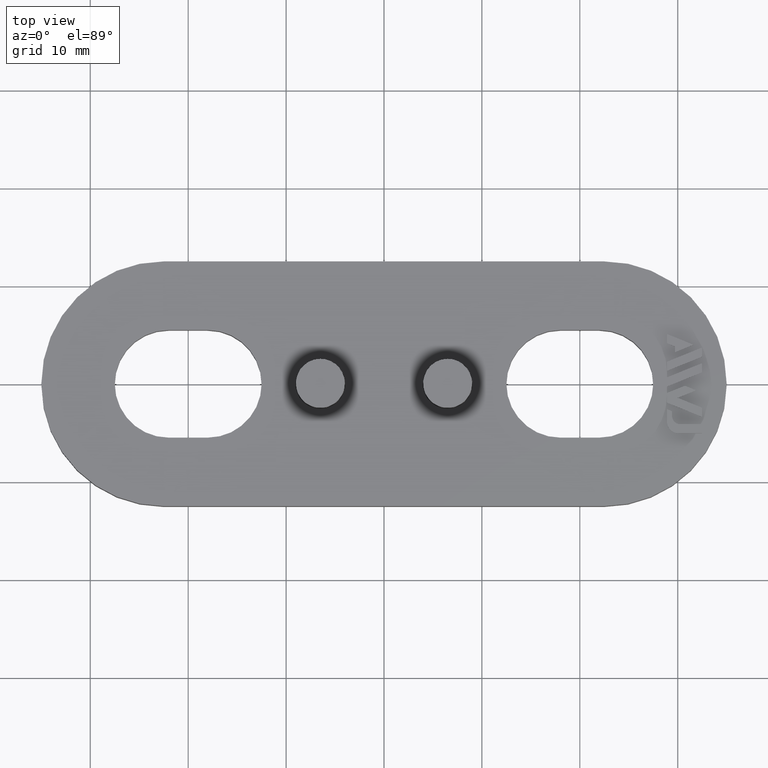
[diagram: clean part render]
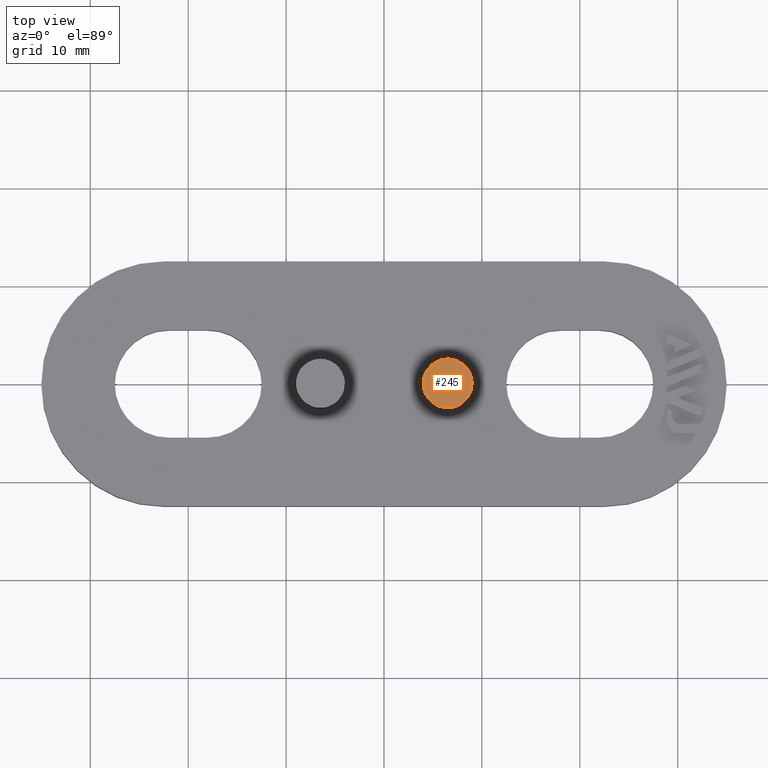
[diagram: same view with one face highlighted and labeled with its STEP entity id]
A machine part, top view. The second image highlights one B-rep face of the part: STEP entity #245.
In plain terms, the highlighted planar face has unit normal (0, -0, -1).
Its self-contained STEP definition (entity closure, byte-faithful):
#245 = ADVANCED_FACE( '', ( #672 ), #673, .F. );
#672 = FACE_OUTER_BOUND( '', #1148, .T. );
#673 = PLANE( '', #1149 );
#1148 = EDGE_LOOP( '', ( #2653 ) );
#1149 = AXIS2_PLACEMENT_3D( '', #2654, #2655, #2656 );
#2653 = ORIENTED_EDGE( '', *, *, #3442, .F. );
#2654 = CARTESIAN_POINT( '', ( 6.50000000000000, -0.000165124598848487, 7.50000000000000 ) );
#2655 = DIRECTION( '', ( 0.000000000000000, -6.12303176911189E-017, -1.00000000000000 ) );
#2656 = DIRECTION( '', ( 1.00000000000000, 0.000000000000000, 0.000000000000000 ) );
#3442 = EDGE_CURVE( '', #4308, #4308, #4309, .T. );
#4308 = VERTEX_POINT( '', #5610 );
#4309 = CIRCLE( '', #5611, 2.50000000000000 );
#5610 = CARTESIAN_POINT( '', ( 9.00000000000000, -0.000165124598848487, 7.50000000000000 ) );
#5611 = AXIS2_PLACEMENT_3D( '', #6366, #6367, #6368 );
#6366 = CARTESIAN_POINT( '', ( 6.50000000000000, -0.000165124598848487, 7.50000000000000 ) );
#6367 = DIRECTION( '', ( 0.000000000000000, -6.12303176911189E-017, -1.00000000000000 ) );
#6368 = DIRECTION( '', ( 1.00000000000000, 0.000000000000000, 0.000000000000000 ) );